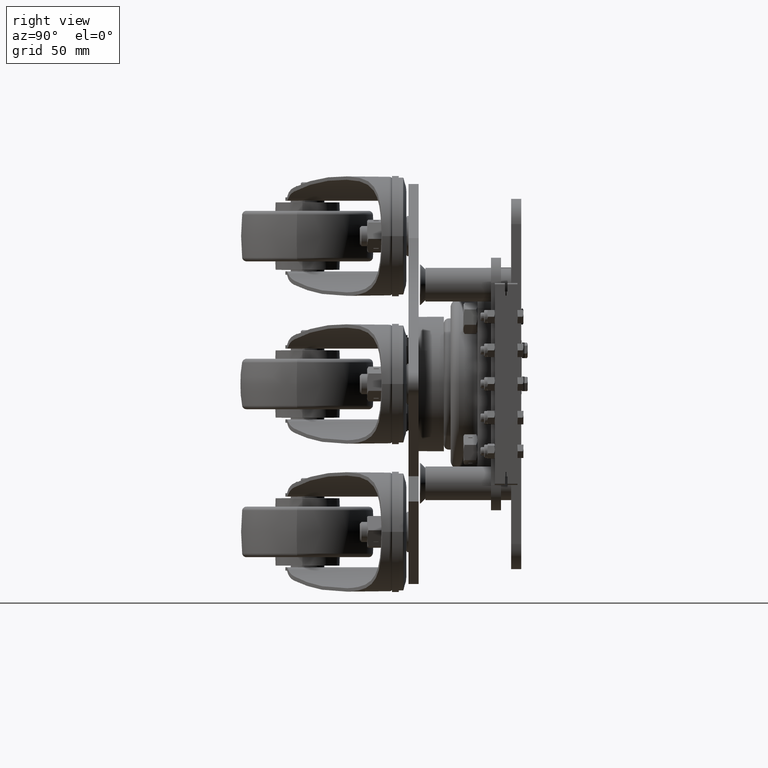
[diagram: clean part render]
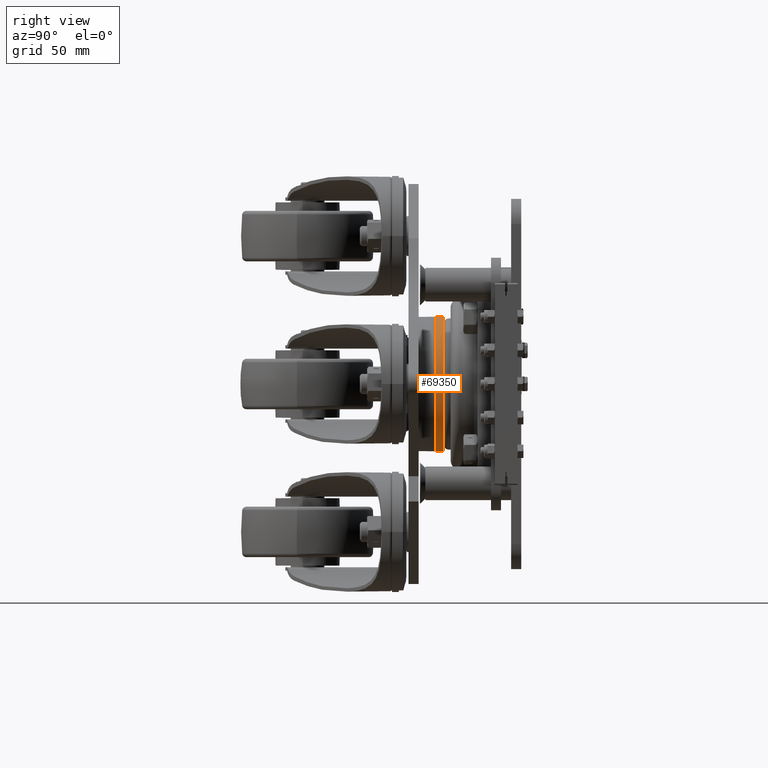
[diagram: same view with one face highlighted and labeled with its STEP entity id]
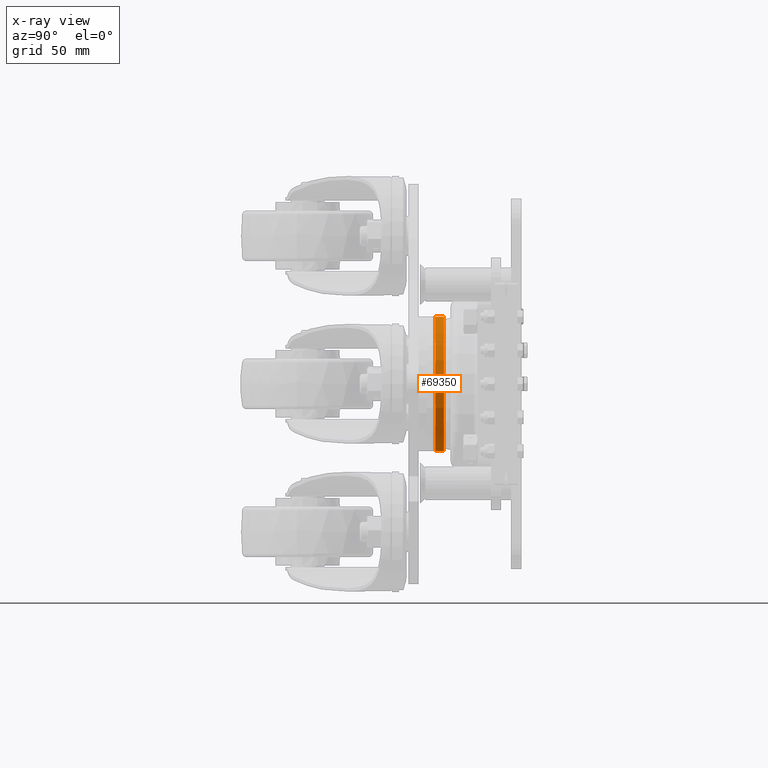
[diagram: x-ray of the same camera — body ghosted, the highlighted face saturated]
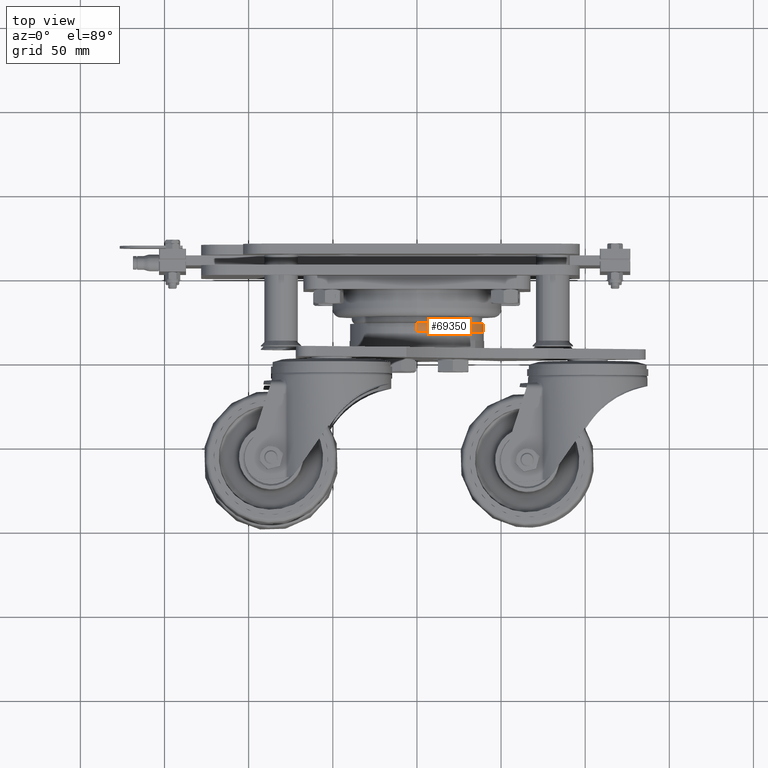
[diagram: same view with one face highlighted and labeled with its STEP entity id]
A machine part, right view. The second image highlights one B-rep face of the part: STEP entity #69350.
The next image is the same camera in x-ray: the body ghosted, the highlighted face saturated — about 0% of this face is hidden behind the body in this view.
A second angle (top view) of the same face is appended — the face is thin or edge-on in the first view.
In plain terms, the highlighted cylindrical surface (partial cylindrical patch) has radius 40 mm, axis along (-0, -1, 0).
Its self-contained STEP definition (entity closure, byte-faithful):
#2671 = CYLINDRICAL_SURFACE ( 'NONE', #10025, 40.00000000000000000 ) ;
#6281 = ORIENTED_EDGE ( 'NONE', *, *, #93922, .F. ) ;
#6933 = EDGE_CURVE ( 'NONE', #42903, #88380, #63197, .T. ) ;
#10025 = AXIS2_PLACEMENT_3D ( 'NONE', #72200, #123842, #84432 ) ;
#16538 = VERTEX_POINT ( 'NONE', #63283 ) ;
#22147 = DIRECTION ( 'NONE',  ( -9.075862188118079544E-16, -1.000000000000000000, 5.931745003642730014E-16 ) ) ;
#29702 = ORIENTED_EDGE ( 'NONE', *, *, #62047, .F. ) ;
#42781 = ORIENTED_EDGE ( 'NONE', *, *, #6933, .T. ) ;
#42903 = VERTEX_POINT ( 'NONE', #63978 ) ;
#43912 = CARTESIAN_POINT ( 'NONE',  ( 2.250803710079907205E-13, -33.00000000000001421, 1.373142051452891366E-13 ) ) ;
#45342 = CARTESIAN_POINT ( 'NONE',  ( 3.050649482787811795E-13, -32.99999999999999289, 40.00000000000014211 ) ) ;
#45624 = VERTEX_POINT ( 'NONE', #62672 ) ;
#46434 = FACE_OUTER_BOUND ( 'NONE', #99407, .T. ) ;
#50972 = VECTOR ( 'NONE', #22147, 1000.000000000000000 ) ;
#53066 = CARTESIAN_POINT ( 'NONE',  ( 1.470041031816994095E-13, -28.00000000000003908, -39.99999999999987210 ) ) ;
#55217 = AXIS2_PLACEMENT_3D ( 'NONE', #126942, #117296, #107700 ) ;
#62047 = EDGE_CURVE ( 'NONE', #45624, #88380, #64426, .T. ) ;
#62672 = CARTESIAN_POINT ( 'NONE',  ( 1.447351376346698831E-13, -33.00000000000003553, -39.99999999999986500 ) ) ;
#63197 = LINE ( 'NONE', #85572, #74267 ) ;
#63283 = CARTESIAN_POINT ( 'NONE',  ( 1.447351376346698831E-13, -28.00000000000003908, -39.99999999999987210 ) ) ;
#63978 = CARTESIAN_POINT ( 'NONE',  ( 3.050649482787812300E-13, -27.99999999999998934, 40.00000000000013500 ) ) ;
#64426 = CIRCLE ( 'NONE', #70747, 40.00000000000000000 ) ;
#69350 = ADVANCED_FACE ( 'NONE', ( #46434 ), #2671, .T. ) ;
#70747 = AXIS2_PLACEMENT_3D ( 'NONE', #43912, #113938, #104776 ) ;
#72200 = CARTESIAN_POINT ( 'NONE',  ( 2.296183021020497733E-13, -28.00000000000001421, 1.343483326434677824E-13 ) ) ;
#74267 = VECTOR ( 'NONE', #115295, 1000.000000000000000 ) ;
#83981 = ORIENTED_EDGE ( 'NONE', *, *, #126618, .T. ) ;
#84432 = DIRECTION ( 'NONE',  ( 1.942890293094024735E-15, 6.071532165918824830E-16, 1.000000000000000000 ) ) ;
#85572 = CARTESIAN_POINT ( 'NONE',  ( 3.073339138258107816E-13, -27.99999999999998934, 40.00000000000013500 ) ) ;
#88380 = VERTEX_POINT ( 'NONE', #45342 ) ;
#93922 = EDGE_CURVE ( 'NONE', #16538, #45624, #129407, .T. ) ;
#99407 = EDGE_LOOP ( 'NONE', ( #6281, #83981, #42781, #29702 ) ) ;
#104776 = DIRECTION ( 'NONE',  ( -1.942890293094024735E-15, -5.204170427930421283E-16, -1.000000000000000000 ) ) ;
#107700 = DIRECTION ( 'NONE',  ( -1.942890293094024735E-15, -6.071532165918824830E-16, -1.000000000000000000 ) ) ;
#113938 = DIRECTION ( 'NONE',  ( -9.075862188118079544E-16, -1.000000000000000000, 5.931745003642729028E-16 ) ) ;
#115295 = DIRECTION ( 'NONE',  ( -9.075862188118079544E-16, -1.000000000000000000, 5.931745003642730014E-16 ) ) ;
#117296 = DIRECTION ( 'NONE',  ( -9.075862188118079544E-16, -1.000000000000000000, 5.931745003642729028E-16 ) ) ;
#122370 = CIRCLE ( 'NONE', #55217, 40.00000000000000000 ) ;
#123842 = DIRECTION ( 'NONE',  ( -9.075862188118079544E-16, -1.000000000000000000, 5.931745003642729028E-16 ) ) ;
#126618 = EDGE_CURVE ( 'NONE', #16538, #42903, #122370, .T. ) ;
#126942 = CARTESIAN_POINT ( 'NONE',  ( 2.296183021020497733E-13, -28.00000000000001421, 1.343483326434677824E-13 ) ) ;
#129407 = LINE ( 'NONE', #53066, #50972 ) ;